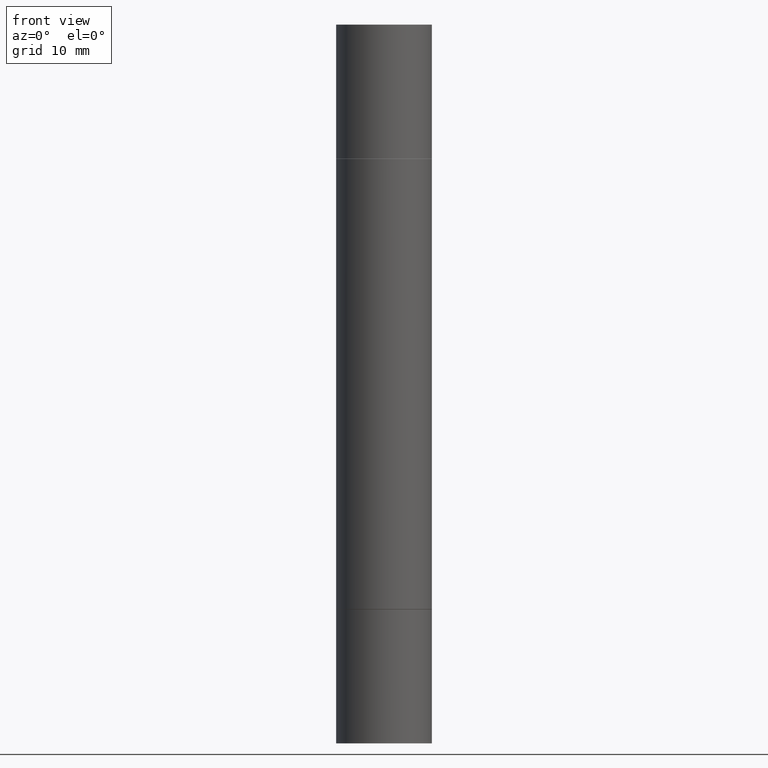
[diagram: clean part render]
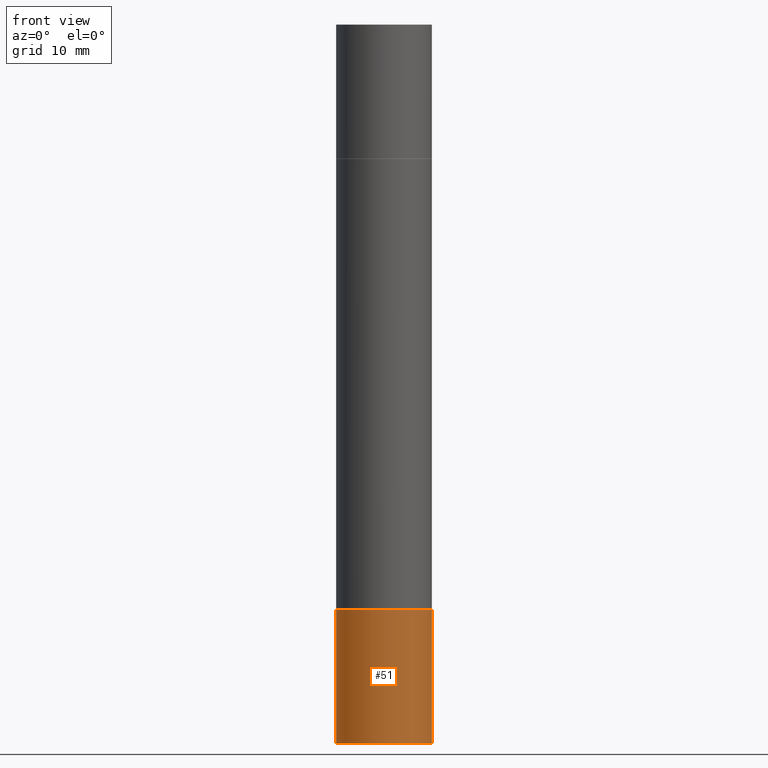
[diagram: same view with one face highlighted and labeled with its STEP entity id]
A machine part, front view. The second image highlights one B-rep face of the part: STEP entity #51.
In plain terms, the highlighted cylindrical surface (partial cylindrical patch) has radius 5 mm, axis along (-0, 0, 1).
Its self-contained STEP definition (entity closure, byte-faithful):
#11 = VERTEX_POINT ( 'NONE', #160 ) ;
#18 = DIRECTION ( 'NONE',  ( -2.445468806185136597E-29, 3.491481338843145583E-15, 1.000000000000000000 ) ) ;
#35 = ORIENTED_EDGE ( 'NONE', *, *, #572, .F. ) ;
#40 = EDGE_CURVE ( 'NONE', #92, #11, #210, .T. ) ;
#51 = ADVANCED_FACE ( 'NONE', ( #313 ), #205, .T. ) ;
#52 = CARTESIAN_POINT ( 'NONE',  ( 0.1968500000000000250, -1.374596203102541608E-15, 9.598753983154300858E-30 ) ) ;
#55 = CARTESIAN_POINT ( 'NONE',  ( -0.1968500000000000250, -7.948690465007109319E-15, -2.952799999999999869 ) ) ;
#71 = DIRECTION ( 'NONE',  ( -2.445468806185136877E-29, 3.491481338843145188E-15, 1.000000000000000000 ) ) ;
#76 = EDGE_CURVE ( 'NONE', #107, #582, #125, .T. ) ;
#92 = VERTEX_POINT ( 'NONE', #55 ) ;
#104 = DIRECTION ( 'NONE',  ( 1.000000000000000000, -6.982962677686265922E-15, 4.876176775795935793E-29 ) ) ;
#105 = VECTOR ( 'NONE', #71, 39.37007874015748143 ) ;
#106 = CIRCLE ( 'NONE', #673, 0.1968500000000000250 ) ;
#107 = VERTEX_POINT ( 'NONE', #594 ) ;
#125 = LINE ( 'NONE', #52, #105 ) ;
#139 = EDGE_LOOP ( 'NONE', ( #564, #590, #379, #35 ) ) ;
#158 = DIRECTION ( 'NONE',  ( -2.445468806185136877E-29, 3.491481338843145188E-15, 1.000000000000000000 ) ) ;
#160 = CARTESIAN_POINT ( 'NONE',  ( -0.1968500000000000250, -7.948690465007109319E-15, -2.401599999999999735 ) ) ;
#205 = CYLINDRICAL_SURFACE ( 'NONE', #516, 0.1968500000000000250 ) ;
#210 = LINE ( 'NONE', #471, #305 ) ;
#305 = VECTOR ( 'NONE', #158, 39.37007874015748143 ) ;
#313 = FACE_OUTER_BOUND ( 'NONE', #139, .T. ) ;
#357 = EDGE_CURVE ( 'NONE', #92, #107, #106, .T. ) ;
#362 = AXIS2_PLACEMENT_3D ( 'NONE', #545, #18, #602 ) ;
#379 = ORIENTED_EDGE ( 'NONE', *, *, #76, .T. ) ;
#412 = CARTESIAN_POINT ( 'NONE',  ( 0.000000000000000000, 0.000000000000000000, 0.000000000000000000 ) ) ;
#471 = CARTESIAN_POINT ( 'NONE',  ( -0.1968500000000000250, 1.398703375343757393E-15, -9.682923725166783677E-30 ) ) ;
#498 = CARTESIAN_POINT ( 'NONE',  ( 0.1968500000000000250, -9.759737786468237294E-15, -2.401599999999999735 ) ) ;
#516 = AXIS2_PLACEMENT_3D ( 'NONE', #412, #569, #104 ) ;
#529 = DIRECTION ( 'NONE',  ( 1.000000000000000000, -6.982962677686267499E-15, 0.000000000000000000 ) ) ;
#545 = CARTESIAN_POINT ( 'NONE',  ( 5.873037884934223228E-29, -8.385141583365697263E-15, -2.401599999999999735 ) ) ;
#564 = ORIENTED_EDGE ( 'NONE', *, *, #40, .F. ) ;
#569 = DIRECTION ( 'NONE',  ( -2.445468806185136597E-29, 3.491481338843145583E-15, 1.000000000000000000 ) ) ;
#572 = EDGE_CURVE ( 'NONE', #11, #582, #644, .T. ) ;
#582 = VERTEX_POINT ( 'NONE', #498 ) ;
#583 = DIRECTION ( 'NONE',  ( -2.445468806185136597E-29, 3.491481338843145583E-15, 1.000000000000000000 ) ) ;
#590 = ORIENTED_EDGE ( 'NONE', *, *, #357, .T. ) ;
#594 = CARTESIAN_POINT ( 'NONE',  ( 0.1968500000000000250, -1.168424230043858014E-14, -2.952799999999999869 ) ) ;
#602 = DIRECTION ( 'NONE',  ( 1.000000000000000000, -6.982962677686262766E-15, 0.000000000000000000 ) ) ;
#630 = CARTESIAN_POINT ( 'NONE',  ( 7.220980290903470182E-29, -1.030964609733603853E-14, -2.952799999999999869 ) ) ;
#644 = CIRCLE ( 'NONE', #362, 0.1968500000000000250 ) ;
#673 = AXIS2_PLACEMENT_3D ( 'NONE', #630, #583, #529 ) ;